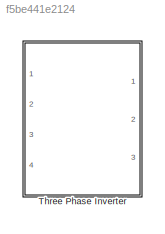
MODEL slx_f5be441e2124
KIND model
CONFIG AbsTol = auto
CONFIG FixedStep = 1e-6
CONFIG MaxStep = auto
CONFIG MinStep = auto
CONFIG RelTol = 1e-3
CONFIG SampleTimeConstraint = Unconstrained
CONFIG Solver = ode4
CONFIG SolverMode = Auto
CONFIG SolverName = ode4
CONFIG StartTime = 0.0
CONFIG StopTime = 0.1
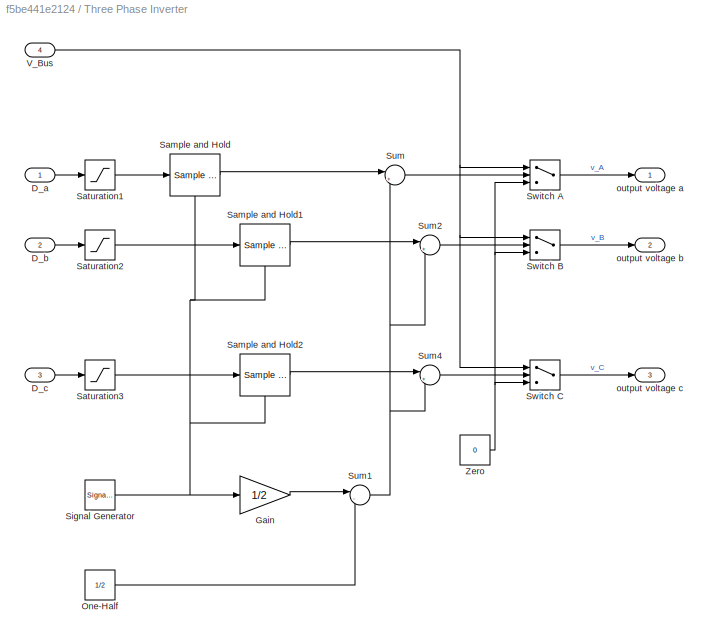
BLOCK [SubSystem] Three Phase Inverter
  Ports = [4, 3]
  RequestExecContextInheritance = off
  Variant = off
BLOCK [Inport] Three Phase Inverter/D_a
  IconDisplay = Port number
BLOCK [Inport] Three Phase Inverter/D_b
  IconDisplay = Port number
  Port = 2
BLOCK [Inport] Three Phase Inverter/D_c
  IconDisplay = Port number
  Port = 3
BLOCK [Gain] Three Phase Inverter/Gain
  Gain = 1/2
BLOCK [Constant] Three Phase Inverter/One-Half
  Value = 1/2
BLOCK [Reference] Three Phase Inverter/Sample and Hold  REF=dspsigops/Sample
and Hold
  Ports = [1, 1, 0, 1]
  SourceBlock = dspsigops/Sample\nand Hold
  SourceType = Sample and Hold
BLOCK [Reference] Three Phase Inverter/Sample and Hold1  REF=dspsigops/Sample
and Hold
  Ports = [1, 1, 0, 1]
  SourceBlock = dspsigops/Sample\nand Hold
  SourceType = Sample and Hold
BLOCK [Reference] Three Phase Inverter/Sample and Hold2  REF=dspsigops/Sample
and Hold
  Ports = [1, 1, 0, 1]
  SourceBlock = dspsigops/Sample\nand Hold
  SourceType = Sample and Hold
BLOCK [Saturate] Three Phase Inverter/Saturation1
  InputPortMap = u0
  LowerLimit = 0
  Ports = [1, 1]
  UpperLimit = 1
BLOCK [Saturate] Three Phase Inverter/Saturation2
  InputPortMap = u0
  LowerLimit = 0
  Ports = [1, 1]
  UpperLimit = 1
BLOCK [Saturate] Three Phase Inverter/Saturation3
  InputPortMap = u0
  LowerLimit = 0
  Ports = [1, 1]
  UpperLimit = 1
BLOCK [SignalGenerator] Three Phase Inverter/Signal Generator
  Frequency = f_sw
  Ports = [0, 1]
  WaveForm = sawtooth
BLOCK [Sum] Three Phase Inverter/Sum
  IconShape = round
  InputSameDT = off
  Inputs = |+-
  OutDataTypeStr = Inherit: Inherit via internal rule
  Ports = [2, 1]
BLOCK [Sum] Three Phase Inverter/Sum1
  IconShape = round
  InputSameDT = off
  Inputs = |-+
  OutDataTypeStr = Inherit: Inherit via internal rule
  Ports = [2, 1]
BLOCK [Sum] Three Phase Inverter/Sum2
  IconShape = round
  InputSameDT = off
  Inputs = |+-
  OutDataTypeStr = Inherit: Inherit via internal rule
  Ports = [2, 1]
BLOCK [Sum] Three Phase Inverter/Sum4
  IconShape = round
  InputSameDT = off
  Inputs = |+-
  OutDataTypeStr = Inherit: Inherit via internal rule
  Ports = [2, 1]
BLOCK [Switch] Three Phase Inverter/Switch A
  InputSameDT = off
BLOCK [Switch] Three Phase Inverter/Switch B
  InputSameDT = off
BLOCK [Switch] Three Phase Inverter/Switch C
  InputSameDT = off
BLOCK [Inport] Three Phase Inverter/V_Bus
  IconDisplay = Port number
  Port = 4
BLOCK [Constant] Three Phase Inverter/Zero
  Value = 0
BLOCK [Outport] Three Phase Inverter/output voltage a
  IconDisplay = Port number
BLOCK [Outport] Three Phase Inverter/output voltage b
  IconDisplay = Port number
  Port = 2
BLOCK [Outport] Three Phase Inverter/output voltage c
  IconDisplay = Port number
  Port = 3
LINE Three Phase Inverter/D_a:1 -> Three Phase Inverter/Saturation1:1
LINE Three Phase Inverter/D_b:1 -> Three Phase Inverter/Saturation2:1
LINE Three Phase Inverter/D_c:1 -> Three Phase Inverter/Saturation3:1
LINE Three Phase Inverter/Gain:1 -> Three Phase Inverter/Sum1:1
LINE Three Phase Inverter/One-Half:1 -> Three Phase Inverter/Sum1:2
LINE Three Phase Inverter/Sample and Hold1:1 -> Three Phase Inverter/Sum2:1
LINE Three Phase Inverter/Sample and Hold2:1 -> Three Phase Inverter/Sum4:1
LINE Three Phase Inverter/Sample and Hold:1 -> Three Phase Inverter/Sum:1
LINE Three Phase Inverter/Saturation1:1 -> Three Phase Inverter/Sample and Hold:1
LINE Three Phase Inverter/Saturation2:1 -> Three Phase Inverter/Sample and Hold1:1
LINE Three Phase Inverter/Saturation3:1 -> Three Phase Inverter/Sample and Hold2:1
NET Three Phase Inverter/Signal Generator:1 -> Three Phase Inverter/Gain:1, Three Phase Inverter/Sample and Hold1:trigger, Three Phase Inverter/Sample and Hold2:trigger, Three Phase Inverter/Sample and Hold:trigger
NET Three Phase Inverter/Sum1:1 -> Three Phase Inverter/Sum2:2, Three Phase Inverter/Sum4:2, Three Phase Inverter/Sum:2
LINE Three Phase Inverter/Sum2:1 -> Three Phase Inverter/Switch B:2
LINE Three Phase Inverter/Sum4:1 -> Three Phase Inverter/Switch C:2
LINE Three Phase Inverter/Sum:1 -> Three Phase Inverter/Switch A:2
LINE Three Phase Inverter/Switch A:1 -> Three Phase Inverter/output voltage a:1
LINE Three Phase Inverter/Switch B:1 -> Three Phase Inverter/output voltage b:1
LINE Three Phase Inverter/Switch C:1 -> Three Phase Inverter/output voltage c:1
NET Three Phase Inverter/V_Bus:1 -> Three Phase Inverter/Switch A:1, Three Phase Inverter/Switch B:1, Three Phase Inverter/Switch C:1
NET Three Phase Inverter/Zero:1 -> Three Phase Inverter/Switch A:3, Three Phase Inverter/Switch B:3, Three Phase Inverter/Switch C:3
note: NET lines group one-source signal fan-out (src -> all destinations, sorted); 1:1 wires keep LINE
